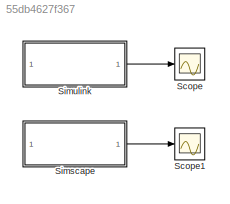
MODEL slx_55db4627f367
KIND model
CONFIG AbsTol = auto
CONFIG EnableMultiTasking = off
CONFIG FixedStep = auto
CONFIG MaxStep = auto
CONFIG MinStep = auto
CONFIG RelTol = 1e-3
CONFIG SampleTimeConstraint = Unconstrained
CONFIG SolverName = VariableStepAuto
CONFIG StartTime = 0.0
CONFIG StopTime = 0.01
BLOCK [Scope] Scope
  Floating = off
  NumInputPorts = 1
  ScopeSpecificationString = Simulink.scopes.TimeScopeBlockCfg('CurrentConfiguration', extmgr.ConfigurationSet(extmgr.Configuration('Core','General UI',true),extmgr.Configuration('Core','Source UI',true),extmgr.Configuration('Sources','WiredSimulink',true),extmgr.Configuration('Visuals','Time Domain',true,'SerializedDisplays',{struct('MinYLimReal','-1.6694','MaxYLimReal','15.02456','YLabelReal','','MinYLimMag','0.00000','MaxY...<+1448ch>
BLOCK [Scope] Scope1
  Floating = off
  NumInputPorts = 1
  ScopeSpecificationString = Simulink.scopes.TimeScopeBlockCfg('CurrentConfiguration', extmgr.ConfigurationSet(extmgr.Configuration('Core','General UI',true),extmgr.Configuration('Core','Source UI',true),extmgr.Configuration('Sources','WiredSimulink',true,'DataLoggingVariableName','ScopeData1'),extmgr.Configuration('Visuals','Time Domain',true,'SerializedDisplays',{struct('MinYLimReal','-1.66824','MaxYLimReal','15.01419','YLa...<+1475ch>
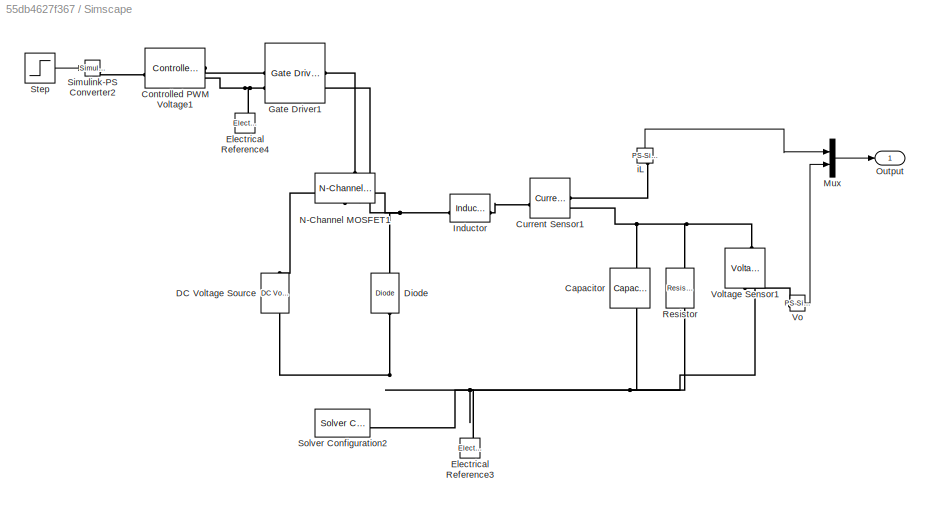
BLOCK [SubSystem] Simscape
BLOCK [Reference] Simscape/Capacitor  REF=fl_lib/Electrical/Electrical Elements/Capacitor
  NameLocation = left
  SourceBlock = fl_lib/Electrical/Electrical Elements/Capacitor
  SourceType = Capacitor
BLOCK [Reference] Simscape/Controlled PWM Voltage1  REF=ee_lib/Integrated Circuits/Controlled PWM
Voltage
  SourceBlock = ee_lib/Integrated Circuits/Controlled PWM\nVoltage
  SourceType = Controlled PWM\nVoltage
BLOCK [Reference] Simscape/Current Sensor1  REF=fl_lib/Electrical/Electrical Sensors/Current Sensor
  SourceBlock = fl_lib/Electrical/Electrical Sensors/Current Sensor
  SourceType = Current Sensor
BLOCK [Reference] Simscape/DC Voltage Source  REF=ee_lib/Additional
Components/SPICE Sources/DC Voltage Source
  NameLocation = right
  SourceBlock = ee_lib/Additional\nComponents/SPICE Sources/DC Voltage Source
  SourceType = DC Voltage Source
BLOCK [Reference] Simscape/Diode  REF=ee_lib/Semiconductors &
Converters/Diode
  NameLocation = right
  SourceBlock = ee_lib/Semiconductors &\nConverters/Diode
  SourceType = Diode
BLOCK [Reference] Simscape/Electrical Reference3  REF=fl_lib/Electrical/Electrical Elements/Electrical Reference
  SourceBlock = fl_lib/Electrical/Electrical Elements/Electrical Reference
  SourceType = Electrical Reference
BLOCK [Reference] Simscape/Electrical Reference4  REF=fl_lib/Electrical/Electrical Elements/Electrical Reference
  SourceBlock = fl_lib/Electrical/Electrical Elements/Electrical Reference
  SourceType = Electrical Reference
BLOCK [Reference] Simscape/Gate Driver1  REF=ee_lib/Semiconductors &
Converters/Gate Driver
  SourceBlock = ee_lib/Semiconductors &\nConverters/Gate Driver
  SourceType = Gate Driver
BLOCK [Reference] Simscape/Inductor  REF=ee_lib/Passive/Inductor
  SourceBlock = ee_lib/Passive/Inductor
  SourceType = Inductor
BLOCK [Mux] Simscape/Mux
  DisplayOption = bar
  Inputs = 2
BLOCK [Reference] Simscape/N-Channel MOSFET1  REF=ee_lib/Semiconductors &
Converters/N-Channel MOSFET
  NameLocation = left
  SourceBlock = ee_lib/Semiconductors &\nConverters/N-Channel MOSFET
  SourceType = N-Channel MOSFET
BLOCK [Outport] Simscape/Output
BLOCK [Reference] Simscape/Resistor  REF=fl_lib/Electrical/Electrical Elements/Resistor
  NameLocation = left
  SourceBlock = fl_lib/Electrical/Electrical Elements/Resistor
  SourceType = Resistor
BLOCK [Reference] Simscape/Simulink-PS Converter2  REF=nesl_utility/Simulink-PS
Converter
  SourceBlock = nesl_utility/Simulink-PS\nConverter
  SourceType = Simulink-PS\nConverter
BLOCK [Reference] Simscape/Solver Configuration2  REF=nesl_utility/Solver
Configuration
  SourceBlock = nesl_utility/Solver\nConfiguration
  SourceType = Solver\nConfiguration
BLOCK [Step] Simscape/Step
  After = 0.4
  SampleTime = 0
  Time = 0
BLOCK [Reference] Simscape/Vo  REF=nesl_utility/PS-Simulink
Converter
  SourceBlock = nesl_utility/PS-Simulink\nConverter
  SourceType = PS-Simulink\nConverter
BLOCK [Reference] Simscape/Voltage Sensor1  REF=fl_lib/Electrical/Electrical Sensors/Voltage Sensor
  NameLocation = right
  SourceBlock = fl_lib/Electrical/Electrical Sensors/Voltage Sensor
  SourceType = Voltage Sensor
BLOCK [Reference] Simscape/iL  REF=nesl_utility/PS-Simulink
Converter
  NameLocation = right
  SourceBlock = nesl_utility/PS-Simulink\nConverter
  SourceType = PS-Simulink\nConverter
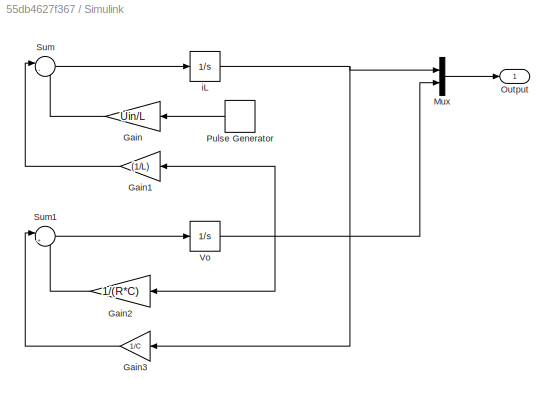
BLOCK [SubSystem] Simulink
BLOCK [Gain] Simulink/Gain
  Gain = Uin/L
  NameLocation = top
BLOCK [Gain] Simulink/Gain1
  Gain = (1/L)
  NameLocation = top
BLOCK [Gain] Simulink/Gain2
  Gain = 1/(R*C)
  NameLocation = top
BLOCK [Gain] Simulink/Gain3
  Gain = 1/C
  NameLocation = top
BLOCK [Mux] Simulink/Mux
  DisplayOption = bar
  Inputs = 2
BLOCK [Outport] Simulink/Output
BLOCK [DiscretePulseGenerator] Simulink/Pulse Generator
  NameLocation = top
  Period = 0.00001
  PulseType = Time based
  PulseWidth = 40
BLOCK [Sum] Simulink/Sum
  Inputs = |-+
BLOCK [Sum] Simulink/Sum1
  Inputs = |+-
BLOCK [Integrator] Simulink/Vo
BLOCK [Integrator] Simulink/iL
LINE Simscape/Mux:1 -> Simscape/Output:1
LINE Simscape/Step:1 -> Simscape/Simulink-PS Converter2:1
LINE Simscape/Vo:1 -> Simscape/Mux:2
LINE Simscape/iL:1 -> Simscape/Mux:1
LINE Simscape:1 -> Scope1:1
LINE Simulink/Gain1:1 -> Simulink/Sum:1
LINE Simulink/Gain2:1 -> Simulink/Sum1:2
LINE Simulink/Gain3:1 -> Simulink/Sum1:1
LINE Simulink/Gain:1 -> Simulink/Sum:2
LINE Simulink/Mux:1 -> Simulink/Output:1
LINE Simulink/Pulse Generator:1 -> Simulink/Gain:1
LINE Simulink/Sum1:1 -> Simulink/Vo:1
LINE Simulink/Sum:1 -> Simulink/iL:1
NET Simulink/Vo:1 -> Simulink/Gain1:1, Simulink/Gain2:1, Simulink/Mux:2
NET Simulink/iL:1 -> Simulink/Gain3:1, Simulink/Mux:1
LINE Simulink:1 -> Scope:1
PNET net1: Simscape/Capacitor:LConn1 -- Simscape/Current Sensor1:RConn2 -- Simscape/Resistor:LConn1 -- Simscape/Voltage Sensor1:LConn1
PNET net2: Simscape/Capacitor:RConn1 -- Simscape/DC Voltage Source:RConn1 -- Simscape/Diode:LConn1 -- Simscape/Electrical Reference3:LConn1 -- Simscape/Resistor:RConn1 -- Simscape/Solver Configuration2:RConn1 -- Simscape/Voltage Sensor1:RConn2
PLINE Simscape/Controlled PWM Voltage1:LConn1 -- Simscape/Simulink-PS Converter2:RConn1
PLINE Simscape/Controlled PWM Voltage1:RConn1 -- Simscape/Gate Driver1:LConn1
PNET net3: Simscape/Controlled PWM Voltage1:RConn2 -- Simscape/Electrical Reference4:LConn1 -- Simscape/Gate Driver1:LConn2
PLINE Simscape/Current Sensor1:LConn1 -- Simscape/Inductor:RConn1
PLINE Simscape/Current Sensor1:RConn1 -- Simscape/iL:LConn1
PLINE Simscape/DC Voltage Source:LConn1 -- Simscape/N-Channel MOSFET1:RConn1
PNET net4: Simscape/Diode:RConn1 -- Simscape/Gate Driver1:RConn2 -- Simscape/Inductor:LConn1 -- Simscape/N-Channel MOSFET1:RConn2
PLINE Simscape/Gate Driver1:RConn1 -- Simscape/N-Channel MOSFET1:LConn1
PLINE Simscape/Vo:LConn1 -- Simscape/Voltage Sensor1:RConn1
note: NET lines group one-source signal fan-out (src -> all destinations, sorted); 1:1 wires keep LINE; PNET lines group multi-terminal physical nets as a canonical sorted terminal list (undirected conserving connections); 2-terminal nets keep the pairwise PLINE form
